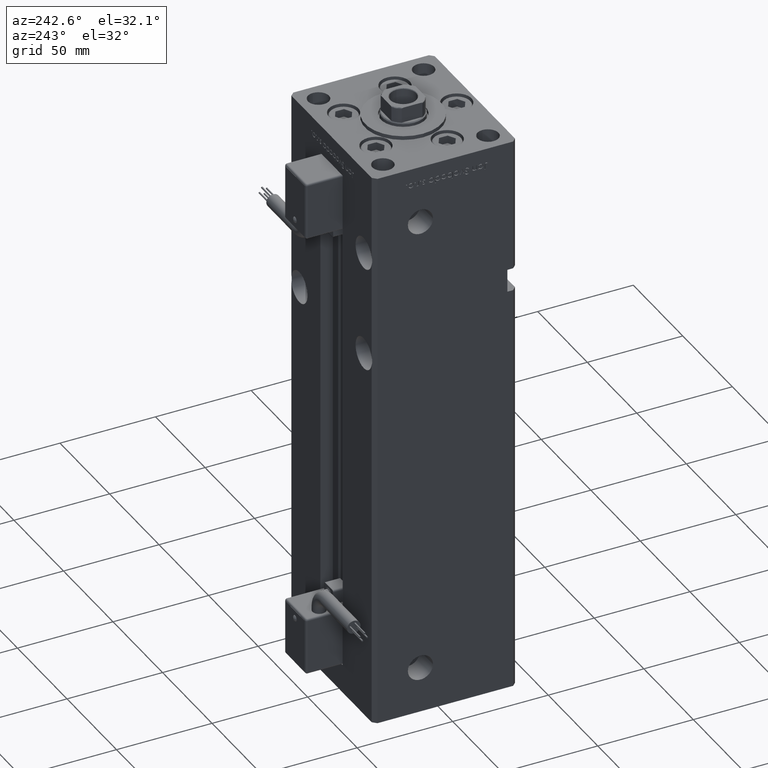
[diagram: clean part render]
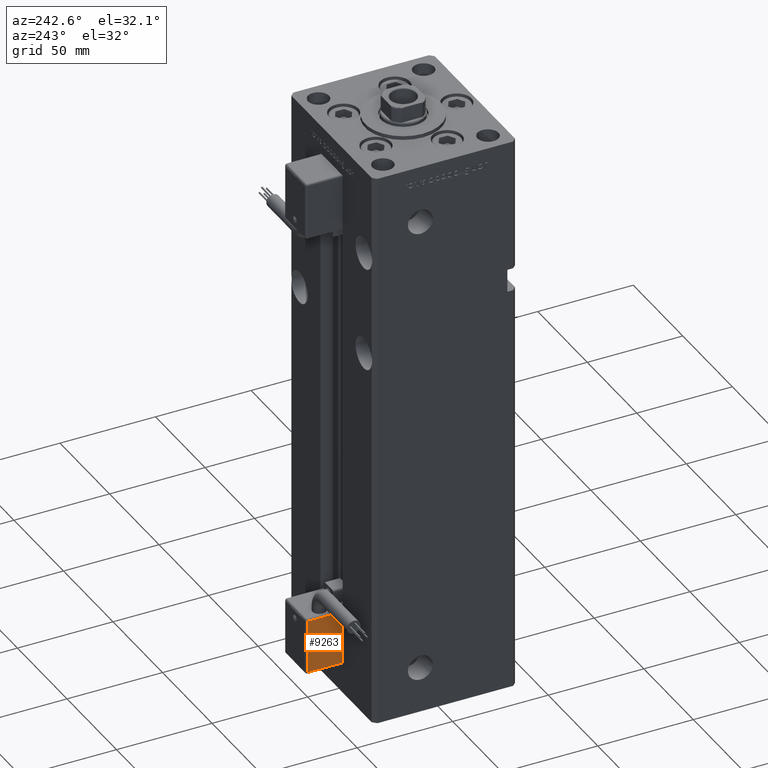
[diagram: same view with one face highlighted and labeled with its STEP entity id]
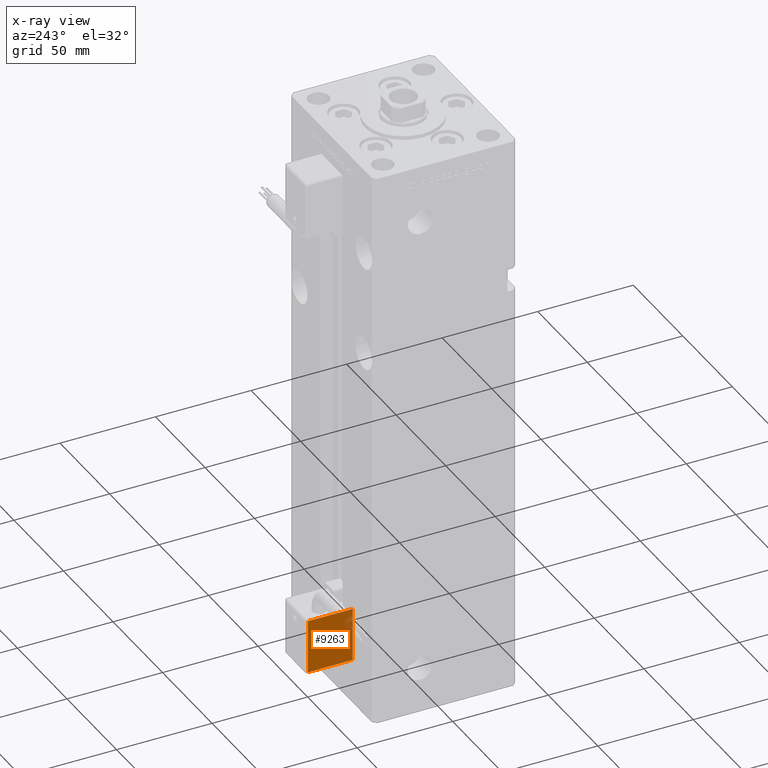
[diagram: x-ray of the same camera — body ghosted, the highlighted face saturated]
A machine part, auxiliary view. The second image highlights one B-rep face of the part: STEP entity #9263.
The next image is the same camera in x-ray: the body ghosted, the highlighted face saturated — about 5% of this face is hidden behind the body in this view.
In plain terms, the highlighted planar face has unit normal (-1, 0, 0).
Its self-contained STEP definition (entity closure, byte-faithful):
#1231 = CARTESIAN_POINT ( 'NONE',  ( 10.80000000000000071, 26.00000000000000000, -55.00000000000000000 ) ) ;
#2485 = ORIENTED_EDGE ( 'NONE', *, *, #47269, .T. ) ;
#5314 = EDGE_LOOP ( 'NONE', ( #2485, #37342, #50617, #50307 ) ) ;
#7293 = VECTOR ( 'NONE', #56107, 1000.000000000000000 ) ;
#7778 = AXIS2_PLACEMENT_3D ( 'NONE', #1231, #22796, #44652 ) ;
#8733 = DIRECTION ( 'NONE',  ( -3.108624468950000014E-32, 1.000000000000000000, 1.400000000000000069E-16 ) ) ;
#9263 = ADVANCED_FACE ( 'NONE', ( #31025 ), #9477, .T. ) ;
#9477 = PLANE ( 'NONE',  #7778 ) ;
#11573 = VERTEX_POINT ( 'NONE', #39762 ) ;
#11822 = LINE ( 'NONE', #25439, #7293 ) ;
#13127 = EDGE_CURVE ( 'NONE', #49503, #11573, #39926, .T. ) ;
#13839 = CARTESIAN_POINT ( 'NONE',  ( 10.80000000000000071, 27.00000000000000000, -55.00000000000000000 ) ) ;
#15620 = VERTEX_POINT ( 'NONE', #20778 ) ;
#18224 = EDGE_CURVE ( 'NONE', #11573, #47498, #26045, .T. ) ;
#20778 = CARTESIAN_POINT ( 'NONE',  ( 10.80000000000000071, 50.50000000000000000, -26.00000000000000000 ) ) ;
#22338 = VECTOR ( 'NONE', #8733, 1000.000000000000000 ) ;
#22796 = DIRECTION ( 'NONE',  ( 1.000000000000000000, 4.930380657629929601E-32, 1.094764425253299406E-47 ) ) ;
#25439 = CARTESIAN_POINT ( 'NONE',  ( 10.80000000000000071, 50.50000000000000000, -25.00000000000000000 ) ) ;
#26045 = LINE ( 'NONE', #52999, #22338 ) ;
#26326 = DIRECTION ( 'NONE',  ( 2.220446049250000002E-16, 1.200000000000000024E-16, -1.000000000000000000 ) ) ;
#29835 = CARTESIAN_POINT ( 'NONE',  ( 10.80000000000000071, 50.50000000000000000, -54.00000000000000000 ) ) ;
#31025 = FACE_OUTER_BOUND ( 'NONE', #5314, .T. ) ;
#31286 = LINE ( 'NONE', #39538, #49975 ) ;
#33480 = CARTESIAN_POINT ( 'NONE',  ( 10.80000000000000071, 27.00000000000000000, -26.00000000000000000 ) ) ;
#37342 = ORIENTED_EDGE ( 'NONE', *, *, #13127, .T. ) ;
#38623 = VECTOR ( 'NONE', #26326, 1000.000000000000000 ) ;
#39260 = DIRECTION ( 'NONE',  ( 3.108624468950000014E-32, -1.000000000000000000, -1.400000000000000069E-16 ) ) ;
#39538 = CARTESIAN_POINT ( 'NONE',  ( 10.80000000000000071, 26.00000000000000000, -26.00000000000000000 ) ) ;
#39762 = CARTESIAN_POINT ( 'NONE',  ( 10.80000000000000071, 27.00000000000000000, -54.00000000000000000 ) ) ;
#39926 = LINE ( 'NONE', #13839, #38623 ) ;
#44652 = DIRECTION ( 'NONE',  ( 0.000000000000000000, -2.220446049250000002E-16, 1.000000000000000000 ) ) ;
#45996 = EDGE_CURVE ( 'NONE', #47498, #15620, #11822, .T. ) ;
#47269 = EDGE_CURVE ( 'NONE', #15620, #49503, #31286, .T. ) ;
#47498 = VERTEX_POINT ( 'NONE', #29835 ) ;
#49503 = VERTEX_POINT ( 'NONE', #33480 ) ;
#49975 = VECTOR ( 'NONE', #39260, 1000.000000000000000 ) ;
#50307 = ORIENTED_EDGE ( 'NONE', *, *, #45996, .T. ) ;
#50617 = ORIENTED_EDGE ( 'NONE', *, *, #18224, .T. ) ;
#52999 = CARTESIAN_POINT ( 'NONE',  ( 10.80000000000000071, 51.50000000000000000, -54.00000000000000000 ) ) ;
#56107 = DIRECTION ( 'NONE',  ( -2.220446049250000002E-16, -1.200000000000000024E-16, 1.000000000000000000 ) ) ;